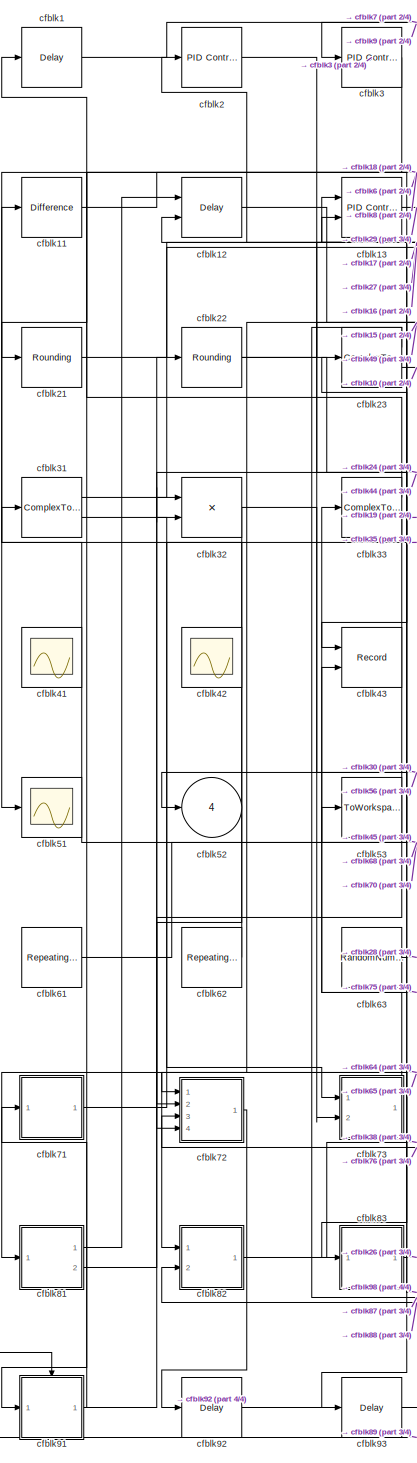
[diagram: root canvas - part 1/4, left side, full height]
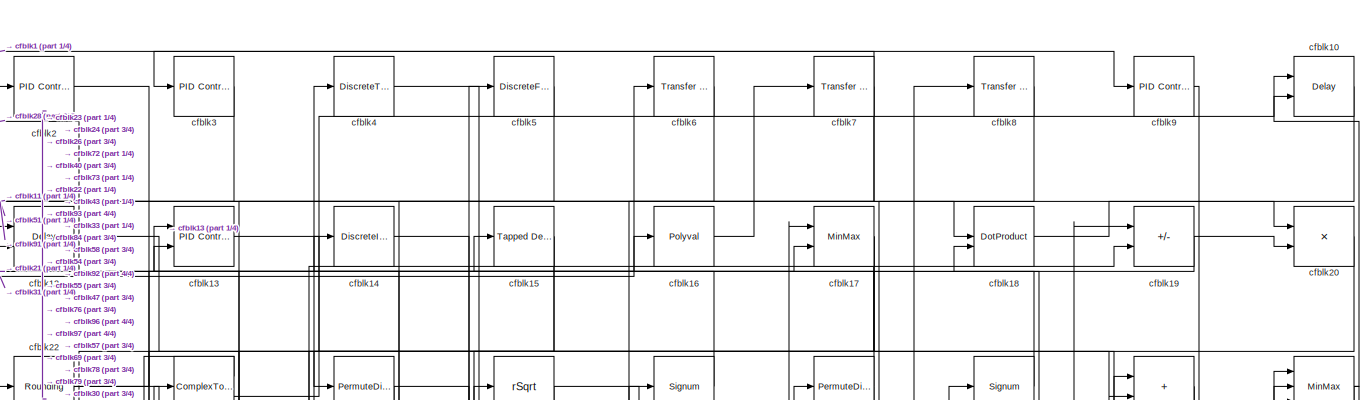
[diagram: root canvas - part 2/4, full width, top band]
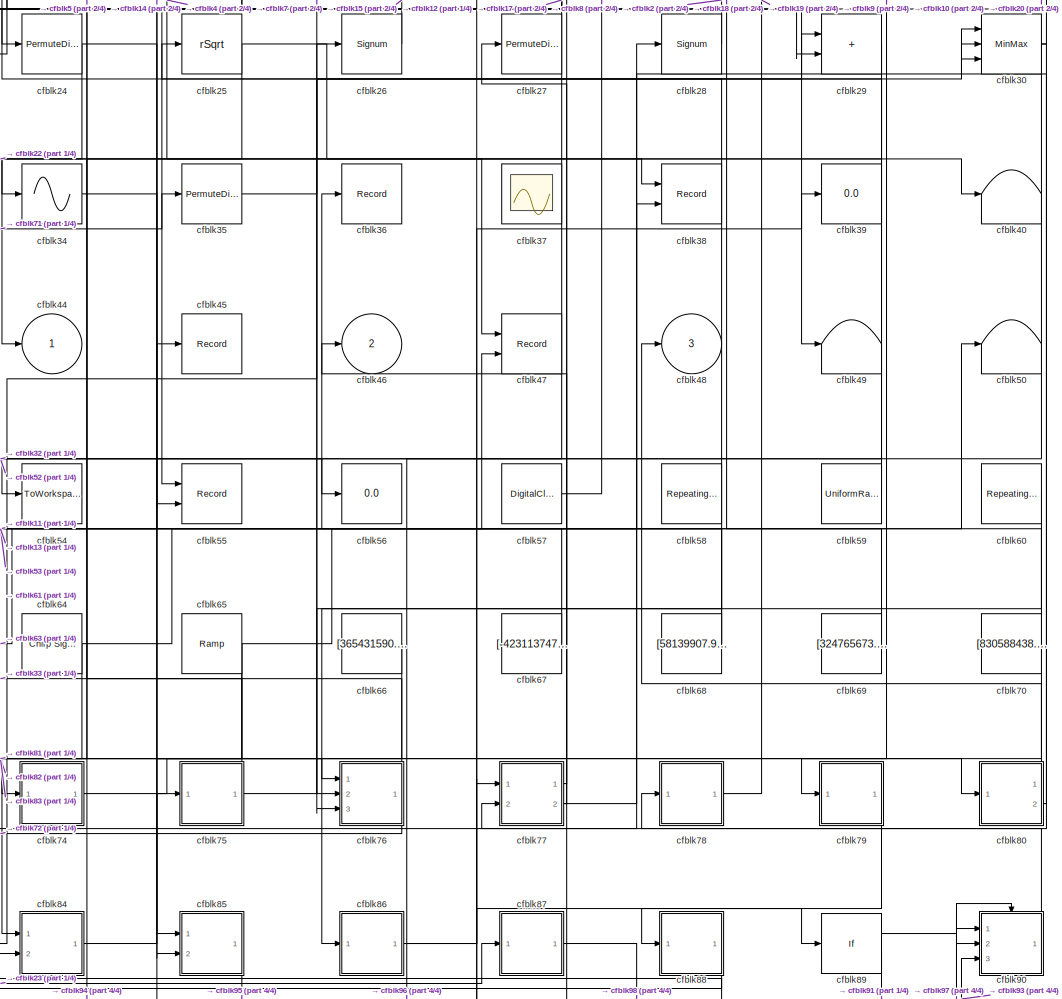
[diagram: root canvas - part 3/4, central region]
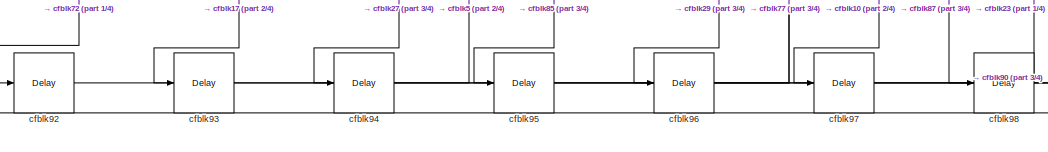
[diagram: root canvas - part 4/4, bottom center region]
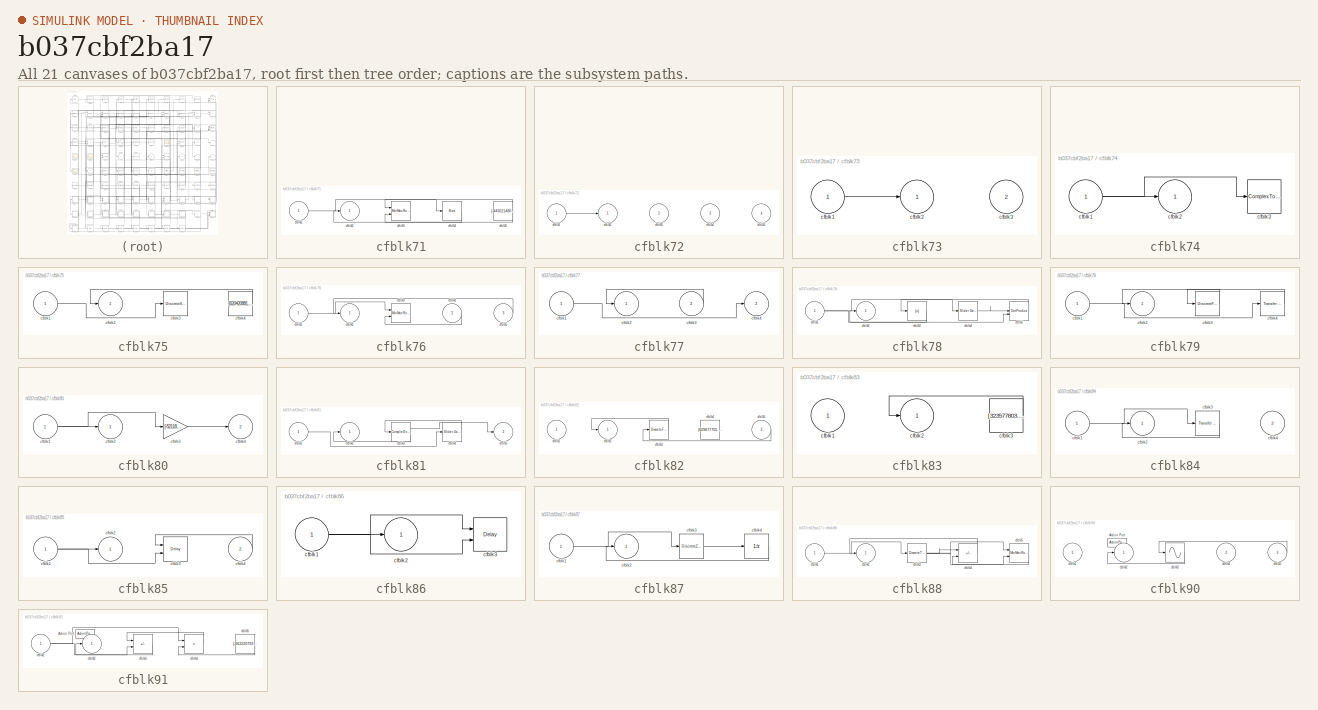
[diagram: thumbnail index - all 21 canvases of the model, root first then tree order]
MODEL slx_b037cbf2ba17
KIND model
CONFIG AbsTol = auto
CONFIG EnableMultiTasking = off
CONFIG FixedStep = auto
CONFIG MaxStep = auto
CONFIG MinStep = auto
CONFIG RelTol = 1e-3
CONFIG SampleTimeConstraint = Unconstrained
CONFIG SolverName = VariableStepAuto
CONFIG StartTime = 0.0
CONFIG StopTime = 10.0
BLOCK [Delay] cfblk1
  InputPortMap = u0
  Ports = [1, 1]
  SampleTime = 1
BLOCK [Delay] cfblk10
  DelayLengthSource = Input port
  InputPortMap = u0,p1
  Ports = [2, 1]
  SampleTime = 1
BLOCK [Reference] cfblk11  REF=simulink/Discrete/Difference
  Ports = [1, 1]
  SourceBlock = simulink/Discrete/Difference
  SourceProductBaseCode = SL
  SourceType = Difference
BLOCK [Delay] cfblk12
  DelayLengthSource = Input port
  InputPortMap = u0,p1
  Ports = [2, 1]
  SampleTime = 1
BLOCK [Reference] cfblk13  REF=slpidlib/PID Controller (2DOF)
  Ports = [2, 1]
  SourceBlock = slpidlib/PID Controller (2DOF)
  SourceProductBaseCode = SL
  SourceType = PID 2dof
BLOCK [DiscreteIntegrator] cfblk14
  ICPrevOutput = DiscIntNeverNeededParam
  ICPrevScaledInput = DiscIntNeverNeededParam
  InitialConditionSetting = Auto
  Ports = [1, 1]
BLOCK [Reference] cfblk15  REF=simulink/Discrete/Tapped Delay
  Ports = [1, 1]
  SourceBlock = simulink/Discrete/Tapped Delay
  SourceProductBaseCode = SL
  SourceType = Tapped Delay Line
BLOCK [Polyval] cfblk16
  Coefs = [ +2.081618890e-019, -1.441693666e-014, +4.719686976e-010, -8.536869453e-006, +1.621573104e-001, -8.087801117e+001 ]
BLOCK [MinMax] cfblk17
  Function = max
  Inputs = 2
  Ports = [2, 1]
BLOCK [DotProduct] cfblk18
  OutDataTypeStr = Inherit: Inherit via internal rule
BLOCK [Sum] cfblk19
  IconShape = rectangular
  Inputs = +-
  Ports = [2, 1]
BLOCK [Reference] cfblk2  REF=slpidlib/PID Controller
  Ports = [1, 1]
  SourceBlock = slpidlib/PID Controller
  SourceProductBaseCode = SL
  SourceType = PID 1dof
BLOCK [Product] cfblk20
  Inputs = **
  Ports = [2, 1]
BLOCK [Rounding] cfblk21
BLOCK [Rounding] cfblk22
BLOCK [ComplexToMagnitudeAngle] cfblk23
  Ports = [1, 2]
BLOCK [PermuteDimensions] cfblk24
BLOCK [Sqrt] cfblk25
  AlgorithmType = Newton-Raphson
  Operator = rSqrt
BLOCK [Signum] cfblk26
BLOCK [PermuteDimensions] cfblk27
BLOCK [Signum] cfblk28
BLOCK [Sum] cfblk29
  IconShape = rectangular
  Ports = [2, 1]
BLOCK [Reference] cfblk3  REF=slpidlib/PID Controller
  Ports = [1, 1]
  SourceBlock = slpidlib/PID Controller
  SourceProductBaseCode = SL
  SourceType = PID 1dof
BLOCK [MinMax] cfblk30
  Inputs = 3
  Ports = [3, 1]
BLOCK [ComplexToRealImag] cfblk31
  Ports = [1, 2]
BLOCK [Product] cfblk32
  Inputs = **
  Ports = [2, 1]
BLOCK [ComplexToRealImag] cfblk33
  Ports = [1, 2]
BLOCK [Sin] cfblk34
  Ports = [1, 1]
  SampleTime = 0
  TimeSource = Use external signal
BLOCK [PermuteDimensions] cfblk35
BLOCK [Record] cfblk36
  FileSettingsInternal = {"entries":[{"content":{"excelSettings":{"content":{},"type":"Streamout.ExcelSettings"}},"type":"Streamout.FileSettingStorage","uuid":"505304d3-139e-4fbd-836a-2b6e6848fe35"}],"packageUris":["http://schema.mathworks.com/mf0/streamout_blocks/R2020a"],"version":"1.0"}
  Ports = [1]
  SignalsInternal = {"entries":[{"content":{"signals":[{"content":{"blockPath":["sampleModel194/cfblk36"],"channel":[],"dimensions":[1],"domain":"sampleModel194/cfblk36","lineColor":"#ff6929","plots":[1],"port":1,"sid":[""],"signalID":7318,"signalName":"cfblk67"},"type":"RecordBlkView.Signal","uuid":"64191778-e69d-4f0f-be16-b449e807e69e"}]},"type":"RecordBlkView.InputSignals","uuid":"4cb3318b-364c-4d2d-ad1f-ebfb7ed25...<+97ch>
  VisualizationBindings = {"sparklinesplugin":{"info":[{"bindingParametersList":[],"subplotID":1}]}}
BLOCK [Scope] cfblk37
  Floating = on
  NumInputPorts = 1
  Ports = []
BLOCK [Record] cfblk38
  CompatibilityTag = XY
  FileSettingsInternal = {"entries":[{"content":{"excelSettings":{"content":{},"type":"Streamout.ExcelSettings"}},"type":"Streamout.FileSettingStorage","uuid":"fad1e1e0-4d45-4d20-8b68-aac126122947"}],"packageUris":["http://schema.mathworks.com/mf0/streamout_blocks/R2020a"],"version":"1.0"}
  Layout = [1 1]
  Ports = [2]
  SignalsInternal = {"entries":[{"content":{"signals":[{"content":{"blockPath":["sampleModel194/cfblk38"],"channel":[],"dimensions":[1],"domain":"sampleModel194/cfblk38","lineColor":"#a2142f","plots":[1],"port":1,"sid":[""],"signalID":7286,"signalName":"cfblk25"},"type":"RecordBlkView.Signal","uuid":"42830077-2795-40a9-b831-744545591230"},{"content":{"blockPath":["sampleModel194/cfblk38"],"channel":[],"dimensions":[1...<+383ch>
  VisualizationBindings = {"xyplotplugin":{"info":[{"series":[{"bindingParametersList":[{"parameter":"X-Axis","signalID":7286,"signalName":"cfblk25"},{"parameter":"Y-Axis","signalID":7290,"signalName":"cfblk82"}],"seriesID":43447}],"subplotID":1}]}}
BLOCK [Display] cfblk39
  Decimation = 1
  Ports = [1]
BLOCK [DiscreteTransferFcn] cfblk4
  InputPortMap = u0
  Ports = [1, 1]
  SampleTime = 1
BLOCK [Terminator] cfblk40
BLOCK [Scope] cfblk41
  Floating = on
  NumInputPorts = 1
  Ports = []
BLOCK [Scope] cfblk42
  Floating = on
  NumInputPorts = 1
  Ports = []
BLOCK [Record] cfblk43
  CompatibilityTag = XY
  FileSettingsInternal = {"entries":[{"content":{"excelSettings":{"content":{},"type":"Streamout.ExcelSettings"}},"type":"Streamout.FileSettingStorage","uuid":"4b22416d-5aba-451e-a01e-3d0144e78e1e"}],"packageUris":["http://schema.mathworks.com/mf0/streamout_blocks/R2020a"],"version":"1.0"}
  Layout = [1 1]
  Ports = [2]
  SignalsInternal = {"entries":[{"content":{"signals":[{"content":{"blockPath":["sampleModel194/cfblk43"],"channel":[],"dimensions":[1],"domain":"sampleModel194/cfblk43","lineColor":"#a2142f","plots":[1],"port":1,"sid":[""],"signalID":7294,"signalName":"cfblk6"},"type":"RecordBlkView.Signal","uuid":"b4c0ad72-92e8-465a-bcf3-fdf496d43d58"},{"content":{"blockPath":["sampleModel194/cfblk43"],"channel":[],"dimensions":[1]...<+382ch>
  VisualizationBindings = {"xyplotplugin":{"info":[{"series":[{"bindingParametersList":[{"parameter":"X-Axis","signalID":7294,"signalName":"cfblk6"},{"parameter":"Y-Axis","signalID":7298,"signalName":"cfblk73"}],"seriesID":63973}],"subplotID":1}]}}
BLOCK [Outport] cfblk44
BLOCK [Record] cfblk45
  FileSettingsInternal = {"entries":[{"content":{"excelSettings":{"content":{},"type":"Streamout.ExcelSettings"}},"type":"Streamout.FileSettingStorage","uuid":"82201833-ab5e-4adb-b9b2-228d96382dd1"}],"packageUris":["http://schema.mathworks.com/mf0/streamout_blocks/R2020a"],"version":"1.0"}
  Ports = [1]
  SignalsInternal = {"entries":[{"content":{"signals":[{"content":{"blockPath":["sampleModel194/cfblk45"],"channel":[],"dimensions":[1],"domain":"sampleModel194/cfblk45","lineColor":"#b746ff","plots":[1],"port":1,"sid":[""],"signalID":7322,"signalName":"cfblk61"},"type":"RecordBlkView.Signal","uuid":"0e526e3a-704c-4dab-8c08-6005a321b527"}]},"type":"RecordBlkView.InputSignals","uuid":"f34e592e-babb-4c99-afcf-cc91b64f6...<+97ch>
  VisualizationBindings = {"sparklinesplugin":{"info":[{"bindingParametersList":[],"subplotID":1}]}}
BLOCK [Outport] cfblk46
  Port = 2
BLOCK [Record] cfblk47
  CompatibilityTag = XY
  FileSettingsInternal = {"entries":[{"content":{"excelSettings":{"content":{},"type":"Streamout.ExcelSettings"}},"type":"Streamout.FileSettingStorage","uuid":"99fd419e-f637-4863-93ad-2a6cf52980de"}],"packageUris":["http://schema.mathworks.com/mf0/streamout_blocks/R2020a"],"version":"1.0"}
  Layout = [1 1]
  Ports = [2]
  SignalsInternal = {"entries":[{"content":{"signals":[{"content":{"blockPath":["sampleModel194/cfblk47"],"channel":[],"dimensions":[1],"domain":"sampleModel194/cfblk47","lineColor":"#a2142f","plots":[1],"port":1,"sid":[""],"signalID":7302,"signalName":"cfblk4"},"type":"RecordBlkView.Signal","uuid":"64ae7a72-02f1-4891-8071-259f15d9b7da"},{"content":{"blockPath":["sampleModel194/cfblk47"],"channel":[],"dimensions":[1]...<+382ch>
  VisualizationBindings = {"xyplotplugin":{"info":[{"series":[{"bindingParametersList":[{"parameter":"X-Axis","signalID":7302,"signalName":"cfblk4"},{"parameter":"Y-Axis","signalID":7306,"signalName":"cfblk65"}],"seriesID":46850}],"subplotID":1}]}}
BLOCK [Outport] cfblk48
  Port = 3
BLOCK [Terminator] cfblk49
BLOCK [DiscreteFilter] cfblk5
  InputPortMap = u0
  Ports = [1, 1]
  SampleTime = 1
BLOCK [Terminator] cfblk50
BLOCK [Scope] cfblk51
  Floating = off
  NumInputPorts = 1
  Ports = [1]
BLOCK [Outport] cfblk52
  Port = 4
BLOCK [ToWorkspace] cfblk53
  FixptAsFi = on
  MaxDataPoints = inf
  Ports = [1]
  SampleTime = -1
  SaveFormat = Timeseries
  VariableName = ffgvbeq
BLOCK [ToWorkspace] cfblk54
  FixptAsFi = on
  MaxDataPoints = inf
  Ports = [1]
  SampleTime = -1
  SaveFormat = Timeseries
  VariableName = ezsbojv
BLOCK [Record] cfblk55
  CompatibilityTag = XY
  FileSettingsInternal = {"entries":[{"content":{"excelSettings":{"content":{},"type":"Streamout.ExcelSettings"}},"type":"Streamout.FileSettingStorage","uuid":"3a5ae888-610c-4eb0-9117-dfd3552ac342"}],"packageUris":["http://schema.mathworks.com/mf0/streamout_blocks/R2020a"],"version":"1.0"}
  Layout = [1 1]
  Ports = [2]
  SignalsInternal = {"entries":[{"content":{"signals":[{"content":{"blockPath":["sampleModel194/cfblk55"],"channel":[],"dimensions":[1,1],"domain":"sampleModel194/cfblk55","lineColor":"#a2142f","plots":[1],"port":1,"sid":[""],"signalID":7310,"signalName":"cfblk17"},"type":"RecordBlkView.Signal","uuid":"0b8e013c-abcd-4bc2-8750-b8469cbf1d84"},{"content":{"blockPath":["sampleModel194/cfblk55"],"channel":[],"dimensions":...<+385ch>
  VisualizationBindings = {"xyplotplugin":{"info":[{"series":[{"bindingParametersList":[{"parameter":"X-Axis","signalID":7310,"signalName":"cfblk17"},{"parameter":"Y-Axis","signalID":7314,"signalName":"cfblk14"}],"seriesID":21135}],"subplotID":1}]}}
BLOCK [Display] cfblk56
  Decimation = 1
  Ports = [1]
BLOCK [DigitalClock] cfblk57
BLOCK [Reference] cfblk58  REF=simulink/Sources/Repeating
Sequence
Stair
  Ports = [0, 1]
  SourceBlock = simulink/Sources/Repeating\nSequence\nStair
  SourceProductBaseCode = SL
  SourceType = Repeating Sequence Stair
BLOCK [UniformRandomNumber] cfblk59
  Maximum = [8988673959.811167]
  Minimum = [-3282774443.542452]
  SampleTime = 0.1
  Seed = [36677357.000000]
BLOCK [Reference] cfblk6  REF=simulink/Discrete/Transfer Fcn
First Order
  Ports = [1, 1]
  SourceBlock = simulink/Discrete/Transfer Fcn\nFirst Order
  SourceProductBaseCode = SL
  SourceType = First Order Transfer Fcn
BLOCK [Reference] cfblk60  REF=simulink/Sources/Repeating
Sequence
  Ports = [0, 1]
  SourceBlock = simulink/Sources/Repeating\nSequence
  SourceProductBaseCode = SL
  SourceType = Repeating table
BLOCK [Reference] cfblk61  REF=simulink/Sources/Repeating
Sequence
Interpolated
  Ports = [0, 1]
  SourceBlock = simulink/Sources/Repeating\nSequence\nInterpolated
  SourceProductBaseCode = SL
  SourceType = Repeating Sequence Interpolated
BLOCK [Reference] cfblk62  REF=simulink/Sources/Repeating
Sequence
Stair
  Ports = [0, 1]
  SourceBlock = simulink/Sources/Repeating\nSequence\nStair
  SourceProductBaseCode = SL
  SourceType = Repeating Sequence Stair
BLOCK [RandomNumber] cfblk63
  Mean = [-31229.278732]
  SampleTime = 0.1
  Seed = [584928382.000000]
  Variance = [6300.795595]
BLOCK [Reference] cfblk64  REF=simulink/Sources/Chirp Signal
  Ports = [0, 1]
  SourceBlock = simulink/Sources/Chirp Signal
  SourceProductBaseCode = SL
  SourceType = chirp
BLOCK [Reference] cfblk65  REF=simulink/Sources/Ramp
  Ports = [0, 1]
  SourceBlock = simulink/Sources/Ramp
  SourceProductBaseCode = SL
  SourceType = Ramp
BLOCK [Constant] cfblk66
  SampleTime = 1
  Value = [365431590.581119]
BLOCK [Constant] cfblk67
  SampleTime = 1
  Value = [-423113747.077778]
BLOCK [Constant] cfblk68
  SampleTime = 1
  Value = [58139907.970252]
BLOCK [Constant] cfblk69
  SampleTime = 1
  Value = [324765673.162526]
BLOCK [Reference] cfblk7  REF=simulink/Discrete/Transfer Fcn
First Order
  Ports = [1, 1]
  SourceBlock = simulink/Discrete/Transfer Fcn\nFirst Order
  SourceProductBaseCode = SL
  SourceType = First Order Transfer Fcn
BLOCK [Constant] cfblk70
  SampleTime = 1
  Value = [830588438.851387]
BLOCK [SubSystem] cfblk71
  Ports = [1, 1]
  RequestExecContextInheritance = off
BLOCK [Inport] cfblk71/cfblk1
BLOCK [Outport] cfblk71/cfblk2
BLOCK [Reference] cfblk71/cfblk3  REF=simulink/Math
Operations/MinMax
Running
Resettable
  Ports = [2, 1]
  SourceBlock = simulink/Math\nOperations/MinMax\nRunning\nResettable
  SourceProductBaseCode = SL
  SourceType = MinMax Running Resettable
BLOCK [Bias] cfblk71/cfblk4
  Bias = [-514815760.634679]
  SaturateOnIntegerOverflow = off
BLOCK [Constant] cfblk71/cfblk5
  SampleTime = 1
  Value = [-445021480.633998]
BLOCK [SubSystem] cfblk72
  Ports = [4, 1]
  RequestExecContextInheritance = off
BLOCK [Inport] cfblk72/cfblk1
BLOCK [Outport] cfblk72/cfblk2
BLOCK [Inport] cfblk72/cfblk3
  Port = 2
BLOCK [Inport] cfblk72/cfblk4
  Port = 3
BLOCK [Inport] cfblk72/cfblk5
  Port = 4
BLOCK [SubSystem] cfblk73
  Ports = [2, 1]
  RequestExecContextInheritance = off
BLOCK [Inport] cfblk73/cfblk1
BLOCK [Outport] cfblk73/cfblk2
BLOCK [Inport] cfblk73/cfblk3
  Port = 2
BLOCK [SubSystem] cfblk74
  Ports = [1, 1]
  RequestExecContextInheritance = off
BLOCK [Inport] cfblk74/cfblk1
BLOCK [Outport] cfblk74/cfblk2
BLOCK [ComplexToMagnitudeAngle] cfblk74/cfblk3
  Ports = [1, 2]
BLOCK [SubSystem] cfblk75
  Ports = [1, 1]
  RequestExecContextInheritance = off
BLOCK [Inport] cfblk75/cfblk1
BLOCK [Outport] cfblk75/cfblk2
BLOCK [DiscreteStateSpace] cfblk75/cfblk3
BLOCK [Constant] cfblk75/cfblk4
  SampleTime = 1
  Value = [620420881.213417]
BLOCK [SubSystem] cfblk76
  Ports = [3, 1]
  RequestExecContextInheritance = off
BLOCK [Inport] cfblk76/cfblk1
BLOCK [Outport] cfblk76/cfblk2
BLOCK [Reference] cfblk76/cfblk3  REF=simulink/Math
Operations/MinMax
Running
Resettable
  Ports = [2, 1]
  SourceBlock = simulink/Math\nOperations/MinMax\nRunning\nResettable
  SourceProductBaseCode = SL
  SourceType = MinMax Running Resettable
BLOCK [Inport] cfblk76/cfblk4
  Port = 2
BLOCK [Inport] cfblk76/cfblk5
  Port = 3
BLOCK [SubSystem] cfblk77
  Ports = [2, 2]
  RequestExecContextInheritance = off
BLOCK [Inport] cfblk77/cfblk1
BLOCK [Outport] cfblk77/cfblk2
BLOCK [Inport] cfblk77/cfblk3
  Port = 2
BLOCK [Outport] cfblk77/cfblk4
  Port = 2
BLOCK [SubSystem] cfblk78
  Ports = [1, 1]
  RequestExecContextInheritance = off
BLOCK [Inport] cfblk78/cfblk1
BLOCK [Outport] cfblk78/cfblk2
BLOCK [Abs] cfblk78/cfblk3
  SaturateOnIntegerOverflow = off
BLOCK [Reference] cfblk78/cfblk4  REF=simulink/Math
Operations/Slider
Gain
  Ports = [1, 1]
  SourceBlock = simulink/Math\nOperations/Slider\nGain
  SourceProductBaseCode = SL
  SourceType = Slider Gain
BLOCK [DotProduct] cfblk78/cfblk5
  OutDataTypeStr = Inherit: Inherit via internal rule
BLOCK [SubSystem] cfblk79
  Ports = [1, 1]
  RequestExecContextInheritance = off
BLOCK [Inport] cfblk79/cfblk1
BLOCK [Outport] cfblk79/cfblk2
BLOCK [DiscreteFir] cfblk79/cfblk3
  InputPortMap = u0
  OutputPortMap = o0
  Ports = [1, 1]
  SampleTime = 1
BLOCK [Reference] cfblk79/cfblk4  REF=simulink/Discrete/Transfer Fcn
Lead or Lag
  Ports = [1, 1]
  SourceBlock = simulink/Discrete/Transfer Fcn\nLead or Lag
  SourceProductBaseCode = SL
  SourceType = Lead or Lag Compensator
BLOCK [Reference] cfblk8  REF=simulink/Discrete/Transfer Fcn
First Order
  Ports = [1, 1]
  SourceBlock = simulink/Discrete/Transfer Fcn\nFirst Order
  SourceProductBaseCode = SL
  SourceType = First Order Transfer Fcn
BLOCK [SubSystem] cfblk80
  Ports = [1, 2]
  RequestExecContextInheritance = off
BLOCK [Inport] cfblk80/cfblk1
BLOCK [Outport] cfblk80/cfblk2
BLOCK [Gain] cfblk80/cfblk3
  Gain = [-521180253.383479]
BLOCK [Outport] cfblk80/cfblk4
  Port = 2
BLOCK [SubSystem] cfblk81
  Ports = [1, 2]
  RequestExecContextInheritance = off
BLOCK [Inport] cfblk81/cfblk1
BLOCK [Outport] cfblk81/cfblk2
BLOCK [ComplexToMagnitudeAngle] cfblk81/cfblk3
  Ports = [1, 2]
BLOCK [Reference] cfblk81/cfblk4  REF=simulink/Math
Operations/Slider
Gain
  Ports = [1, 1]
  SourceBlock = simulink/Math\nOperations/Slider\nGain
  SourceProductBaseCode = SL
  SourceType = Slider Gain
BLOCK [Outport] cfblk81/cfblk5
  Port = 2
BLOCK [SubSystem] cfblk82
  Ports = [2, 1]
  RequestExecContextInheritance = off
BLOCK [Inport] cfblk82/cfblk1
BLOCK [Outport] cfblk82/cfblk2
BLOCK [DiscreteFir] cfblk82/cfblk3
  InputPortMap = u0
  OutputPortMap = o0
  Ports = [1, 1]
  SampleTime = 1
BLOCK [Constant] cfblk82/cfblk4
  SampleTime = 1
  Value = [609677705.727759]
BLOCK [Inport] cfblk82/cfblk5
  Port = 2
BLOCK [SubSystem] cfblk83
  Ports = [1, 1]
  RequestExecContextInheritance = off
BLOCK [Inport] cfblk83/cfblk1
BLOCK [Outport] cfblk83/cfblk2
BLOCK [Constant] cfblk83/cfblk3
  SampleTime = 1
  Value = [323577803.772354]
BLOCK [SubSystem] cfblk84
  Ports = [2, 1]
  RequestExecContextInheritance = off
BLOCK [Inport] cfblk84/cfblk1
BLOCK [Outport] cfblk84/cfblk2
BLOCK [Reference] cfblk84/cfblk3  REF=simulink/Discrete/Transfer Fcn
First Order
  Ports = [1, 1]
  SourceBlock = simulink/Discrete/Transfer Fcn\nFirst Order
  SourceProductBaseCode = SL
  SourceType = First Order Transfer Fcn
BLOCK [Inport] cfblk84/cfblk4
  Port = 2
BLOCK [SubSystem] cfblk85
  Ports = [2, 1]
  RequestExecContextInheritance = off
BLOCK [Inport] cfblk85/cfblk1
BLOCK [Outport] cfblk85/cfblk2
BLOCK [Delay] cfblk85/cfblk3
  InputPortMap = u0,e6
  Ports = [2, 1]
  SampleTime = 1
  ShowEnablePort = on
BLOCK [Inport] cfblk85/cfblk4
  Port = 2
BLOCK [SubSystem] cfblk86
  Ports = [1, 1]
  RequestExecContextInheritance = off
BLOCK [Inport] cfblk86/cfblk1
BLOCK [Outport] cfblk86/cfblk2
BLOCK [Delay] cfblk86/cfblk3
  InputPortMap = u0,e6
  Ports = [2, 1]
  SampleTime = 1
  ShowEnablePort = on
BLOCK [SubSystem] cfblk87
  Ports = [1, 1]
  RequestExecContextInheritance = off
BLOCK [Inport] cfblk87/cfblk1
BLOCK [Outport] cfblk87/cfblk2
BLOCK [DiscreteZeroPole] cfblk87/cfblk3
  Gain = 1
  Poles = [0 0.5]
BLOCK [UnitDelay] cfblk87/cfblk4
  HasFrameUpgradeWarning = on
BLOCK [SubSystem] cfblk88
  Ports = [1, 1]
  RequestExecContextInheritance = off
BLOCK [Inport] cfblk88/cfblk1
BLOCK [Outport] cfblk88/cfblk2
BLOCK [DiscreteTransferFcn] cfblk88/cfblk3
  InputPortMap = u0
  Ports = [1, 1]
  SampleTime = 1
BLOCK [Sum] cfblk88/cfblk4
  IconShape = rectangular
  Inputs = +-
  Ports = [2, 1]
BLOCK [Reference] cfblk88/cfblk5  REF=simulink/Math
Operations/MinMax
Running
Resettable
  Ports = [2, 1]
  SourceBlock = simulink/Math\nOperations/MinMax\nRunning\nResettable
  SourceProductBaseCode = SL
  SourceType = MinMax Running Resettable
BLOCK [If] cfblk89
  IfExpression = u1 >= 0
  Ports = [1, 2]
  SampleTime = 1
BLOCK [Reference] cfblk9  REF=slpidlib/PID Controller
  Ports = [1, 1]
  SourceBlock = slpidlib/PID Controller
  SourceProductBaseCode = SL
  SourceType = PID 1dof
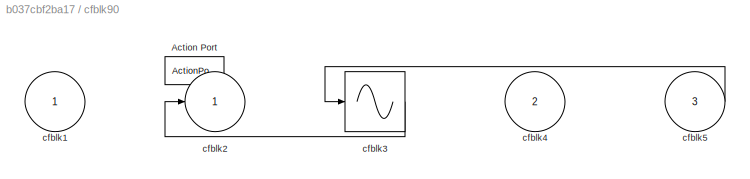
BLOCK [SubSystem] cfblk90
  Ports = [3, 1, 0, 0, 0, 0, 0, 1]
  RequestExecContextInheritance = off
  TreatAsAtomicUnit = on
BLOCK [ActionPort] cfblk90/Action Port
  ActionPortLabel = if(u1 >= 0)
BLOCK [Inport] cfblk90/cfblk1
BLOCK [Outport] cfblk90/cfblk2
BLOCK [Sin] cfblk90/cfblk3
  Ports = [1, 1]
  SampleTime = 0
  TimeSource = Use external signal
BLOCK [Inport] cfblk90/cfblk4
  Port = 2
BLOCK [Inport] cfblk90/cfblk5
  Port = 3
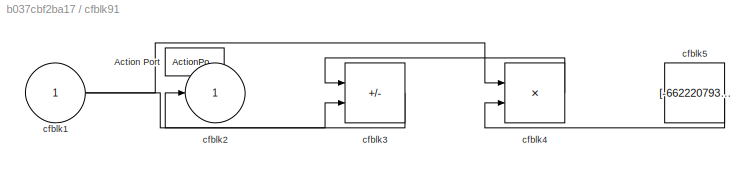
BLOCK [SubSystem] cfblk91
  Ports = [1, 1, 0, 0, 0, 0, 0, 1]
  RequestExecContextInheritance = off
  TreatAsAtomicUnit = on
BLOCK [ActionPort] cfblk91/Action Port
  ActionPortLabel = else
BLOCK [Inport] cfblk91/cfblk1
BLOCK [Outport] cfblk91/cfblk2
BLOCK [Sum] cfblk91/cfblk3
  IconShape = rectangular
  Inputs = +-
  Ports = [2, 1]
BLOCK [Product] cfblk91/cfblk4
  Inputs = **
  Ports = [2, 1]
BLOCK [Constant] cfblk91/cfblk5
  SampleTime = 1
  Value = [-662220793.346281]
BLOCK [Delay] cfblk92
  InputPortMap = u0
  Ports = [1, 1]
  SampleTime = 1
BLOCK [Delay] cfblk93
  InputPortMap = u0
  Ports = [1, 1]
  SampleTime = 1
BLOCK [Delay] cfblk94
  InputPortMap = u0
  Ports = [1, 1]
  SampleTime = 1
BLOCK [Delay] cfblk95
  InputPortMap = u0
  Ports = [1, 1]
  SampleTime = 1
BLOCK [Delay] cfblk96
  InputPortMap = u0
  Ports = [1, 1]
  SampleTime = 1
BLOCK [Delay] cfblk97
  InputPortMap = u0
  Ports = [1, 1]
  SampleTime = 1
BLOCK [Delay] cfblk98
  InputPortMap = u0
  Ports = [1, 1]
  SampleTime = 1
LINE cfblk10:1 -> cfblk97:1
LINE cfblk11:1 -> cfblk18:1
LINE cfblk12:1 -> cfblk49:1
LINE cfblk13:1 -> cfblk29:2
LINE cfblk14:1 -> cfblk55:2
NET cfblk15:1 -> cfblk72:1, cfblk73:2
LINE cfblk16:1 -> cfblk7:1
NET cfblk17:1 -> cfblk55:1, cfblk84:2, cfblk93:1
LINE cfblk18:1 -> cfblk20:1
NET cfblk19:1 -> cfblk13:2, cfblk20:2
LINE cfblk1:1 -> cfblk9:1
LINE cfblk20:1 -> cfblk54:1
LINE cfblk21:1 -> cfblk6:1
NET cfblk22:1 -> cfblk17:2, cfblk44:1
LINE cfblk23:1 -> cfblk87:1
LINE cfblk23:2 -> cfblk10:1
NET cfblk24:1 -> cfblk32:2, cfblk76:1
NET cfblk25:1 -> cfblk38:1, cfblk74:1
LINE cfblk26:1 -> cfblk15:1
NET cfblk27:1 -> cfblk12:2, cfblk94:1
LINE cfblk28:1 -> cfblk2:1
NET cfblk29:1 -> cfblk34:1, cfblk96:1
LINE cfblk2:1 -> cfblk40:1
NET cfblk30:1 -> cfblk10:2, cfblk52:1, cfblk78:1
LINE cfblk31:1 -> cfblk16:1
LINE cfblk31:2 -> cfblk73:1
NET cfblk32:1 -> cfblk56:1, cfblk72:2
LINE cfblk33:1 -> cfblk1:1
NET cfblk33:2 -> cfblk19:2, cfblk72:4
LINE cfblk34:1 -> cfblk85:1
LINE cfblk35:1 -> cfblk29:1
LINE cfblk3:1 -> cfblk51:1
LINE cfblk4:1 -> cfblk47:1
LINE cfblk57:1 -> cfblk8:1
NET cfblk58:1 -> cfblk4:1, cfblk76:3
LINE cfblk59:1 -> cfblk25:1
LINE cfblk5:1 -> cfblk24:1
LINE cfblk60:1 -> cfblk86:1
LINE cfblk61:1 -> cfblk45:1
LINE cfblk62:1 -> cfblk31:1
LINE cfblk63:1 -> cfblk28:1
NET cfblk64:1 -> cfblk50:1, cfblk81:1
NET cfblk65:1 -> cfblk47:2, cfblk82:1, cfblk83:1
LINE cfblk66:1 -> cfblk85:2
LINE cfblk67:1 -> cfblk36:1
NET cfblk68:1 -> cfblk13:1, cfblk53:1
LINE cfblk69:1 -> cfblk18:2
LINE cfblk6:1 -> cfblk43:1
NET cfblk70:1 -> cfblk11:1, cfblk84:1
LINE cfblk71/cfblk1:1 -> cfblk71/cfblk4:1
LINE cfblk71/cfblk4:1 -> cfblk71/cfblk2:1
NET cfblk71/cfblk5:1 -> cfblk71/cfblk3:1, cfblk71/cfblk3:2
LINE cfblk71:1 -> cfblk35:1
LINE cfblk72/cfblk1:1 -> cfblk72/cfblk2:1
LINE cfblk72:1 -> cfblk92:1
LINE cfblk73/cfblk1:1 -> cfblk73/cfblk2:1
LINE cfblk73:1 -> cfblk43:2
NET cfblk74/cfblk1:1 -> cfblk74/cfblk2:1, cfblk74/cfblk3:1
LINE cfblk74:1 -> cfblk80:1
LINE cfblk75/cfblk1:1 -> cfblk75/cfblk3:1
LINE cfblk75/cfblk4:1 -> cfblk75/cfblk2:1
NET cfblk75:1 -> cfblk30:3, cfblk33:1
LINE cfblk76/cfblk1:1 -> cfblk76/cfblk3:1
LINE cfblk76/cfblk4:1 -> cfblk76/cfblk3:2
LINE cfblk76/cfblk5:1 -> cfblk76/cfblk2:1
NET cfblk76:1 -> cfblk14:1, cfblk72:3
LINE cfblk77/cfblk1:1 -> cfblk77/cfblk4:1
LINE cfblk77/cfblk3:1 -> cfblk77/cfblk2:1
LINE cfblk77:1 -> cfblk27:1
NET cfblk77:2 -> cfblk30:2, cfblk46:1
NET cfblk78/cfblk1:1 -> cfblk78/cfblk4:1, cfblk78/cfblk5:2
LINE cfblk78/cfblk3:1 -> cfblk78/cfblk2:1
LINE cfblk78/cfblk4:1 -> cfblk78/cfblk5:1
LINE cfblk78/cfblk5:1 -> cfblk78/cfblk3:1
LINE cfblk78:1 -> cfblk19:1
LINE cfblk79/cfblk1:1 -> cfblk79/cfblk4:1
LINE cfblk79/cfblk3:1 -> cfblk79/cfblk2:1
LINE cfblk79/cfblk4:1 -> cfblk79/cfblk3:1
LINE cfblk79:1 -> cfblk88:1
NET cfblk7:1 -> cfblk21:1, cfblk3:1, cfblk76:2
NET cfblk80/cfblk1:1 -> cfblk80/cfblk2:1, cfblk80/cfblk3:1
LINE cfblk80/cfblk3:1 -> cfblk80/cfblk4:1
LINE cfblk80:1 -> cfblk48:1
LINE cfblk80:2 -> cfblk30:1
LINE cfblk81/cfblk1:1 -> cfblk81/cfblk4:1
LINE cfblk81/cfblk3:1 -> cfblk81/cfblk5:1
LINE cfblk81/cfblk3:2 -> cfblk81/cfblk2:1
LINE cfblk81/cfblk4:1 -> cfblk81/cfblk3:1
LINE cfblk81:1 -> cfblk12:1
LINE cfblk81:2 -> cfblk32:1
LINE cfblk82/cfblk3:1 -> cfblk82/cfblk2:1
LINE cfblk82/cfblk5:1 -> cfblk82/cfblk3:1
LINE cfblk82:1 -> cfblk38:2
LINE cfblk83/cfblk3:1 -> cfblk83/cfblk2:1
LINE cfblk83:1 -> cfblk26:1
LINE cfblk84/cfblk1:1 -> cfblk84/cfblk3:1
LINE cfblk84/cfblk3:1 -> cfblk84/cfblk2:1
LINE cfblk84:1 -> cfblk75:1
NET cfblk85/cfblk1:1 -> cfblk85/cfblk2:1, cfblk85/cfblk3:2
LINE cfblk85/cfblk4:1 -> cfblk85/cfblk3:1
LINE cfblk85:1 -> cfblk95:1
NET cfblk86/cfblk1:1 -> cfblk86/cfblk2:1, cfblk86/cfblk3:1, cfblk86/cfblk3:2
NET cfblk86:1 -> cfblk39:1, cfblk89:1
LINE cfblk87/cfblk1:1 -> cfblk87/cfblk3:1
LINE cfblk87/cfblk3:1 -> cfblk87/cfblk4:1
LINE cfblk87/cfblk4:1 -> cfblk87/cfblk2:1
LINE cfblk87:1 -> cfblk98:1
LINE cfblk88/cfblk1:1 -> cfblk88/cfblk3:1
NET cfblk88/cfblk3:1 -> cfblk88/cfblk4:1, cfblk88/cfblk5:1, cfblk88/cfblk5:2
LINE cfblk88/cfblk4:1 -> cfblk88/cfblk2:1
LINE cfblk88/cfblk5:1 -> cfblk88/cfblk4:2
LINE cfblk88:1 -> cfblk82:2
LINE cfblk89:1 -> cfblk90:ifaction
LINE cfblk89:2 -> cfblk91:ifaction
LINE cfblk8:1 -> cfblk91:1
LINE cfblk90/cfblk3:1 -> cfblk90/cfblk2:1
LINE cfblk90/cfblk5:1 -> cfblk90/cfblk3:1
LINE cfblk90:1 -> cfblk77:2
NET cfblk91/cfblk1:1 -> cfblk91/cfblk3:2, cfblk91/cfblk4:1
LINE cfblk91/cfblk3:1 -> cfblk91/cfblk2:1
LINE cfblk91/cfblk4:1 -> cfblk91/cfblk3:1
LINE cfblk91/cfblk5:1 -> cfblk91/cfblk4:2
NET cfblk91:1 -> cfblk22:1, cfblk71:1
LINE cfblk92:1 -> cfblk5:1
LINE cfblk93:1 -> cfblk90:3
LINE cfblk94:1 -> cfblk90:2
LINE cfblk95:1 -> cfblk77:1
LINE cfblk96:1 -> cfblk17:1
LINE cfblk97:1 -> cfblk90:1
LINE cfblk98:1 -> cfblk23:1
LINE cfblk9:1 -> cfblk79:1
note: NET lines group one-source signal fan-out (src -> all destinations, sorted); 1:1 wires keep LINE
